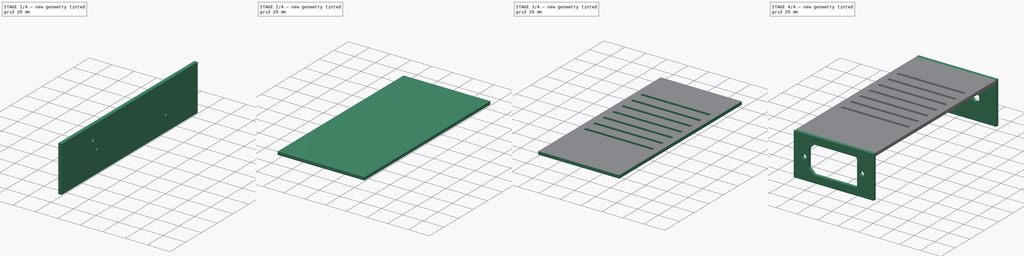
[diagram: build sequence overview — one tinted view per stage of 4, left to right]
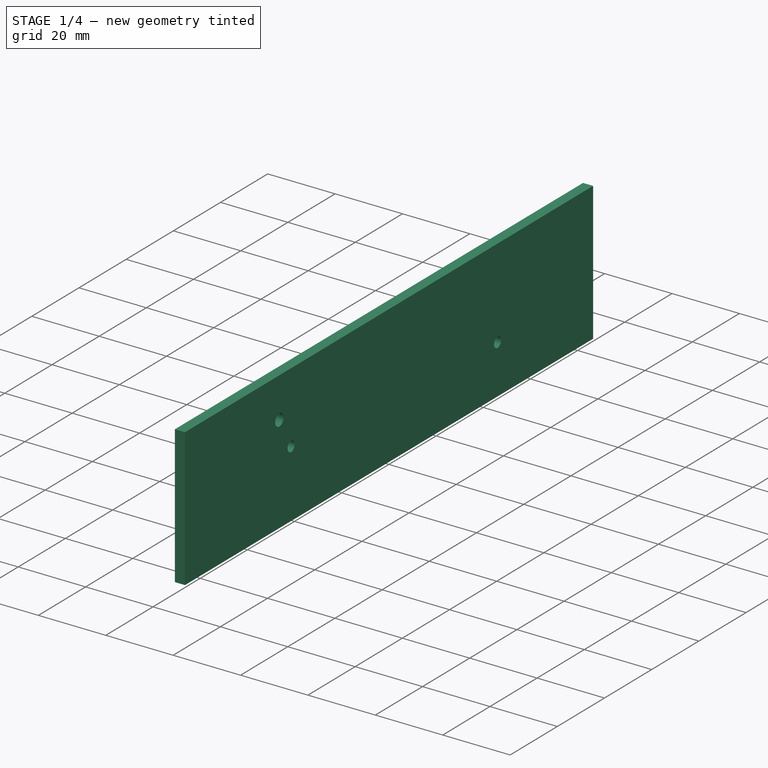
[diagram: stage 1 of 4 — iso view after this stage's code; geometry added in this stage tinted green]
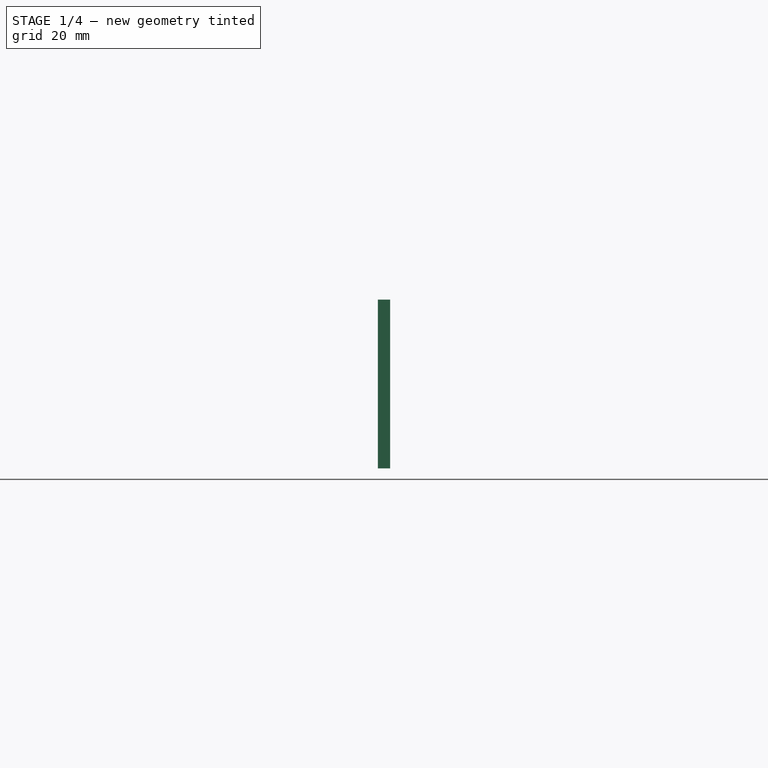
[diagram: stage 1 of 4 — front view after this stage's code; geometry added in this stage tinted green]
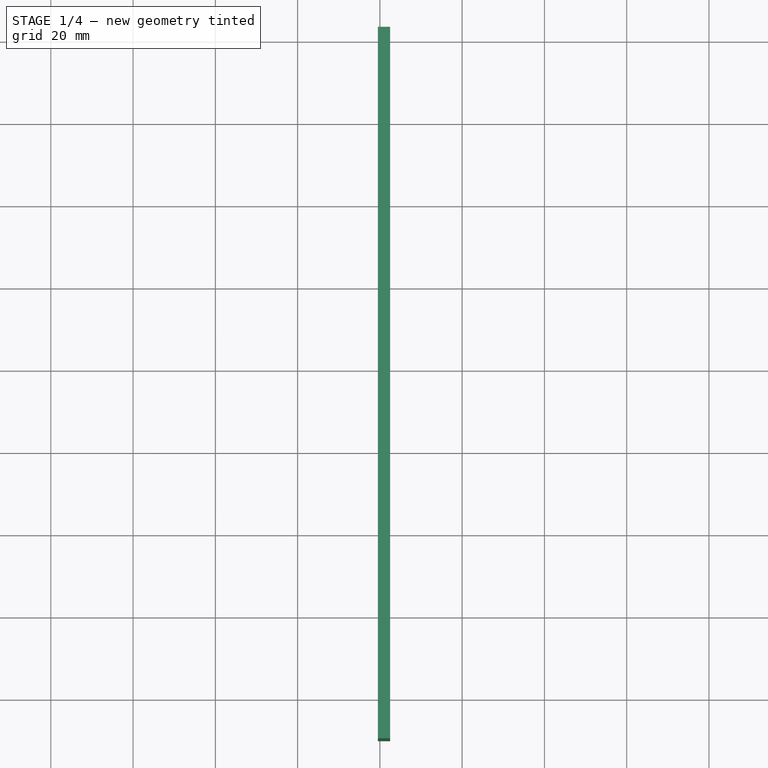
[diagram: stage 1 of 4 — top view after this stage's code; geometry added in this stage tinted green]
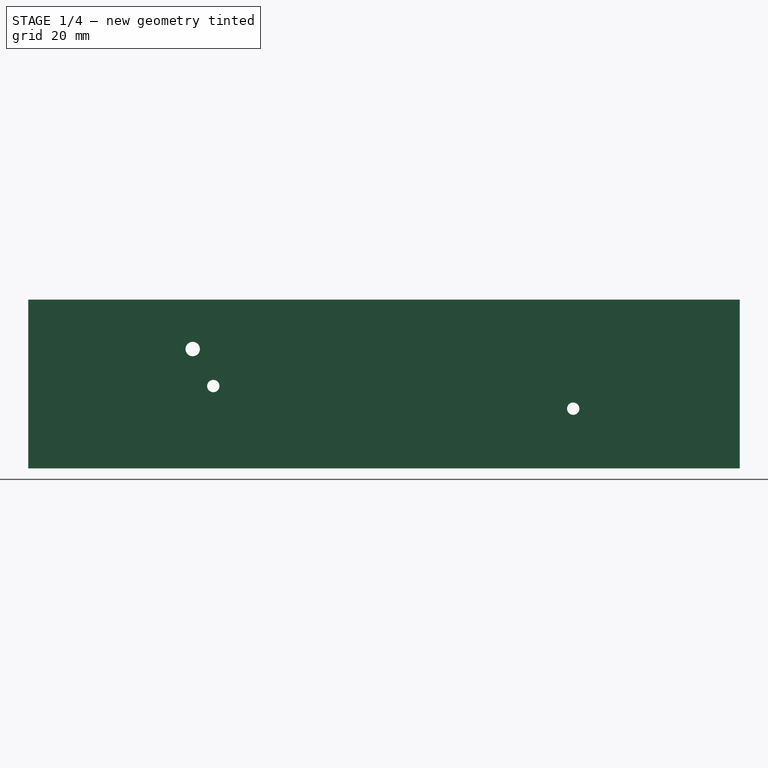
[diagram: stage 1 of 4 — right view after this stage's code; geometry added in this stage tinted green]
FCSTD DOCUMENT  (FreeCAD 0.19R14555 (Git shallow))
Label: case_simple_cut
License: All rights reserved
LicenseURL: http://en.wikipedia.org/wiki/All_rights_reserved
objects: Part::Feature×18, PartDesign::SubShapeBinder×12, Sketcher::SketchObject×9, PartDesign::Body×9, PartDesign::Pad×7, PartDesign::Plane×5, App::Part×4, PartDesign::FeatureBase×2, PartDesign::Pocket×2, Spreadsheet::Sheet×1, App::DocumentObjectGroup×1, Part::FeaturePython×1
note: 74 computed .brp shape members not serialized (recipe doc carries the construction recipe); baked Part::Feature solids carry a one-line shape summary decoded from their .brp

FEATURE [Part::Feature] assembly_Compound  label="psu"
  shape: bbox 77.5 x 110 x 36 mm, 793 faces, 0 solids (baked)
FEATURE [Part::Feature] __5mm_2_1mm_DC_JACK  label="dc_jack_mount"
  shape: bbox 10.8 x 21.74 x 10.8 mm, 87 faces, 0 solids (baked)
FEATURE [Part::Feature] __5mm_2_1mm_DC_JACK001  label="dc_jack_nut"
  Placement = pos=(0,3,0) rot=(0,0,1;0rad)
  shape: bbox 22.33 x 2.129 x 11.16 mm, 14 faces, 0 solids (baked)
  expr: .Placement.Base.y = <<measurements>>.thickness
FEATURE [Part::Feature] AC_Power_Socket_3_pin_250V_10A_AC_17002  label="power_socket"
  Placement = pos=(0,-90,20.5) rot=(1,0,0;1.5708rad)
  shape: bbox 66.3 x 35.64 x 32.3 mm, 981 faces, 17 solids (baked)
FEATURE [Spreadsheet::Sheet] Spreadsheet  label="measurements"
  cells = A1=thickness; B1(thickness)=3
FEATURE [PartDesign::SubShapeBinder] Binder  label="psu_binder"
  BindMode = 0
  ClaimChildren = false
  Context = -> Part [Body.Binder.]
  Fuse = false
  MakeFace = true
  PartialLoad = false
  Relative = true
  Support = -> [Part001[assembly_Compound.Face48,assembly_Compound.Edge254,assembly_Compound.Edge293]]
  _Version = 2
FEATURE [PartDesign::SubShapeBinder] Binder003
  BindMode = 0
  ClaimChildren = false
  Context = -> Part [Body001.Binder003.]
  Fuse = false
  MakeFace = true
  PartialLoad = false
  Relative = true
  Support = -> [Body[Pad.Face2,Pad.Edge3],Part001[assembly_Compound.Face52,assembly_Compound.Face55,assembly_Compound.Edge293]]
  _Version = 2
FEATURE [PartDesign::Plane] DatumPlane
  Length = 194.371
  MapMode = 7
  Placement = pos=(42.5,-90,0) rot=(0.57735,0.57735,0.57735;2.0944rad)
  ResizeMode = 0
  Support = -> [Binder003]
  Width = 87.371
FEATURE [Sketcher::SketchObject] Sketch001
  ExternalGeometry = -> [Binder003]
  FullyConstrained = true
  MapMode = 5
  Placement = pos=(42.5,-90,0) rot=(0.57735,0.57735,0.57735;2.0944rad)
  Support = -> [DatumPlane]
  expr: Constraints[12] = <<measurements>>.thickness + 2
  sketch-geometry (7):
    g0: LineSegment StartX=0 StartY=41 StartZ=0 EndX=173 EndY=41 EndZ=0
    g1: LineSegment StartX=173 StartY=41 StartZ=0 EndX=173 EndY=0 EndZ=0
    g2: LineSegment StartX=173 StartY=0 StartZ=0 EndX=0 EndY=0 EndZ=0
    g3: LineSegment StartX=0 StartY=0 StartZ=0 EndX=0 EndY=41 EndZ=0
    g4: Circle CenterX=40 CenterY=29 CenterZ=0 NormalX=0 NormalY=0 NormalZ=1 AngleXU=0 Radius=1.75
    g5: Circle CenterX=45 CenterY=20 CenterZ=0 NormalX=0 NormalY=0 NormalZ=1 AngleXU=0 Radius=1.5
    g6: Circle CenterX=132.5 CenterY=14.5 CenterZ=0 NormalX=0 NormalY=0 NormalZ=1 AngleXU=0 Radius=1.5
  constraints (17):
    c: Coincident(g0,g1)
    c: Coincident(g1,g2)
    c: Coincident(g3,g0)
    c: Horizontal(g0)
    c: Vertical(g1)
    c: Vertical(g3)
    c: Coincident(g6,g-8)
    c: Coincident(g-6,g5)
    c: Coincident(g-5,g4)
    c: Equal(g4,g-5)
    c: Equal(g-6,g5)
    c: Equal(g-8,g6)
    c: DistanceY(g-4,g0) = 5
    c: Coincident(g2,g3)
    c: Horizontal(g2)
    c: Coincident(g2,g-1)
    c: Vertical(g1,g-3)
FEATURE [PartDesign::Pad] Pad001
  Direction = (1,1,1)
  Length = 3
  Length2 = 100
  Placement = pos=(42.5,-90,0) rot=(0.57735,0.57735,0.57735;2.0944rad)
  Profile = -> Sketch001
  Refine = true
  Reversed = true
  Type = 0
  expr: Length = <<measurements>>.thickness
FEATURE [PartDesign::SubShapeBinder] Binder010  label="dc_jack_binder"
  BindMode = 0
  ClaimChildren = false
  Context = -> Part [Body.Binder010.]
  Fuse = false
  MakeFace = true
  PartialLoad = false
  Relative = true
  Support = -> [Part001[Part002.__5mm_2_1mm_DC_JACK.Face45,Part003.Body008.Clone001.Face45,Part002.__5mm_2_1mm_DC_JACK001.Face5,Part002.__5mm_2_1mm_DC_JACK.Face44,Part003.Body008.Clone001.Face44,Part003.Body007.Clone.Face5,Part002.__5mm_2_1mm_DC_JACK.Face34,Part003.Body008.Clone001.Face34]]
  _Version = 2
FEATURE [Sketcher::SketchObject] Sketch
  ExternalGeometry = -> [Binder,Binder006,Binder010]
  FullyConstrained = true
  MapMode = 5
  Placement = pos=(0,0,0) rot=(1,0,0;3.14159rad)
  Support = -> [Binder]
  expr: Constraints[23] = <<measurements>>.thickness
  expr: Constraints[21] = <<measurements>>.thickness
  expr: Constraints[20] = <<measurements>>.thickness
  sketch-geometry (10):
    g0: LineSegment StartX=-41 StartY=90 StartZ=0 EndX=42.5 EndY=90 EndZ=0
    g1: LineSegment StartX=42.5 StartY=90 StartZ=0 EndX=42.5 EndY=-83 EndZ=0
    g2: LineSegment StartX=42.5 StartY=-83 StartZ=0 EndX=-41 EndY=-83 EndZ=0
    g3: LineSegment StartX=-41 StartY=-83 StartZ=0 EndX=-41 EndY=90 EndZ=0
    g4: Circle CenterX=-33 CenterY=50 CenterZ=0 NormalX=0 NormalY=0 NormalZ=1 AngleXU=0 Radius=1.5
    g5: Circle CenterX=-13 CenterY=23 CenterZ=0 NormalX=0 NormalY=0 NormalZ=1 AngleXU=0 Radius=1.5
    g6: Circle CenterX=35 CenterY=51 CenterZ=0 NormalX=0 NormalY=0 NormalZ=1 AngleXU=0 Radius=1.75
    g7: Circle CenterX=15 CenterY=-13 CenterZ=0 NormalX=0 NormalY=0 NormalZ=1 AngleXU=0 Radius=1.5
    g8: Circle CenterX=-13 CenterY=-13 CenterZ=0 NormalX=0 NormalY=0 NormalZ=1 AngleXU=0 Radius=1.5
    g9: Circle CenterX=-30.5 CenterY=-43 CenterZ=0 NormalX=0 NormalY=0 NormalZ=1 AngleXU=0 Radius=1.5
  constraints (24):
    c: Coincident(g0,g1)
    c: Coincident(g1,g2)
    c: Coincident(g2,g3)
    c: Coincident(g3,g0)
    c: Horizontal(g0)
    c: Horizontal(g2)
    c: Vertical(g1)
    c: Vertical(g3)
    c: Coincident(g4,g-4)
    c: Equal(g4,g-4)
    c: Coincident(g5,g-3)
    c: Coincident(g6,g-5)
    c: Coincident(g7,g-6)
    c: Coincident(g8,g-7)
    c: Coincident(g9,g-8)
    c: Equal(g-5,g6)
    c: Equal(g-3,g5)
    c: Equal(g-7,g8)
    c: Equal(g7,g-6)
    c: Equal(g9,g-8)
    c: DistanceX(g-13,g1) = 3
    c: DistanceX(g2,g-11) = 3
    c: Horizontal(g0,g-14)
    c: DistanceY(g1,g-16) = 3
FEATURE [PartDesign::Pad] Pad
  Direction = (1,1,1)
  Length = 3
  Length2 = 100
  Profile = -> Sketch
  Refine = true
  Type = 0
  expr: Length = <<measurements>>.thickness
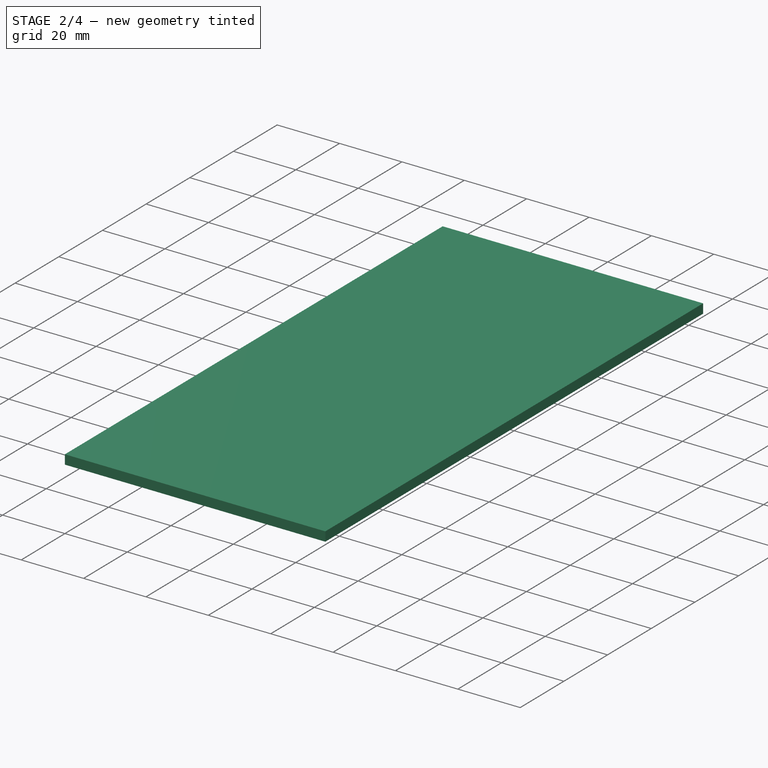
[diagram: stage 2 of 4 — iso view after this stage's code; geometry added in this stage tinted green]
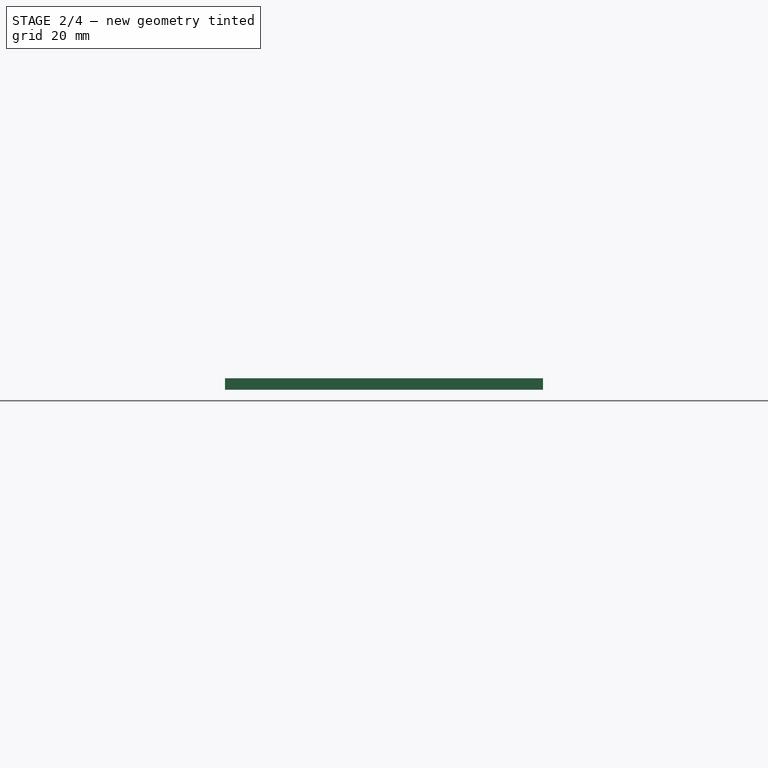
[diagram: stage 2 of 4 — front view after this stage's code; geometry added in this stage tinted green]
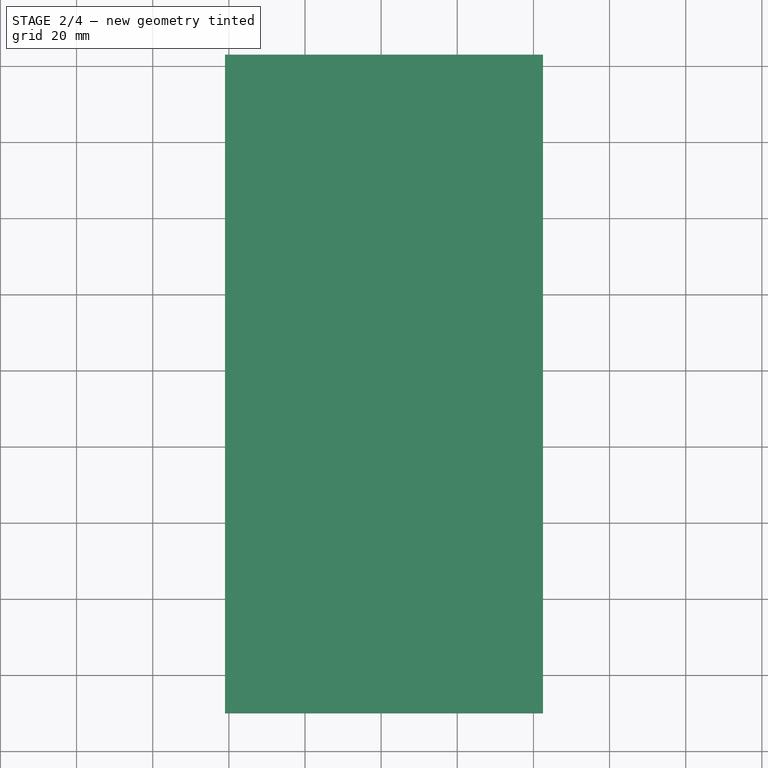
[diagram: stage 2 of 4 — top view after this stage's code; geometry added in this stage tinted green]
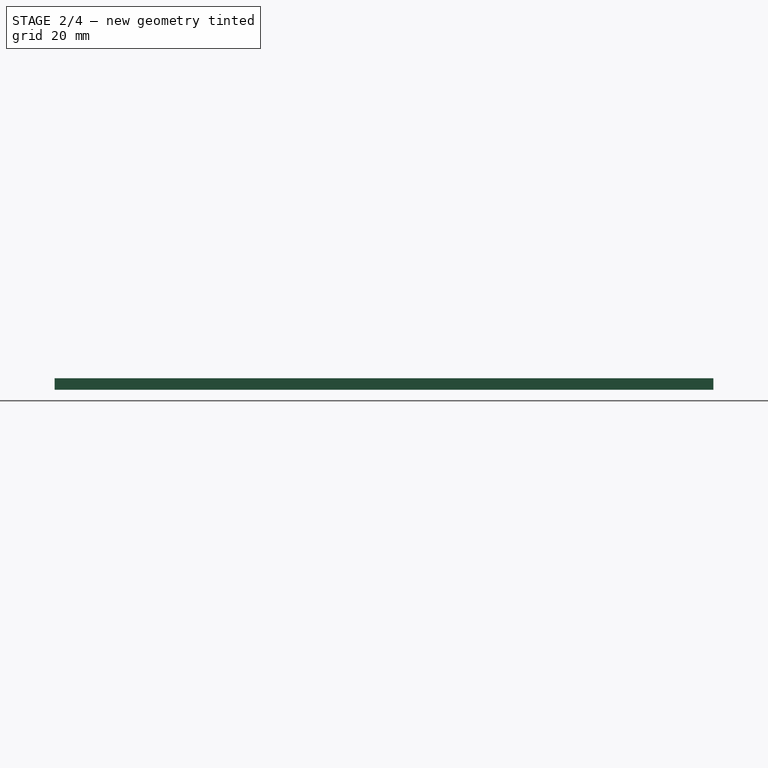
[diagram: stage 2 of 4 — right view after this stage's code; geometry added in this stage tinted green]
FEATURE [PartDesign::Body] Body001  label="right"
  Group = -> [Binder003,DatumPlane,Sketch001,Pad001]
  Origin = -> Origin003
  Tip = -> Pad001
FEATURE [PartDesign::SubShapeBinder] Binder004
  BindMode = 0
  ClaimChildren = false
  Context = -> Part [Body002.Binder004.]
  Fuse = false
  MakeFace = true
  PartialLoad = false
  Relative = true
  Support = -> [Body[Pad.Face4,Pad.Edge4],Body001[Pad001.Edge3]]
  _Version = 2
FEATURE [PartDesign::Plane] DatumPlane001
  Length = 194.371
  MapMode = 7
  Placement = pos=(-41,-90,-3) rot=(0.57735,-0.57735,-0.57735;2.0944rad)
  ResizeMode = 0
  Support = -> [Binder004]
  Width = 87.371
FEATURE [Sketcher::SketchObject] Sketch002
  ExternalGeometry = -> [Binder004]
  FullyConstrained = true
  MapMode = 5
  Placement = pos=(-41,-90,-3) rot=(0.57735,-0.57735,-0.57735;2.0944rad)
  Support = -> [DatumPlane001]
  expr: Constraints[9] = <<measurements>>.thickness
  sketch-geometry (4):
    g0: LineSegment StartX=-173 StartY=44 StartZ=0 EndX=0 EndY=44 EndZ=0
    g1: LineSegment StartX=0 StartY=44 StartZ=0 EndX=0 EndY=3 EndZ=0
    g2: LineSegment StartX=0 StartY=3 StartZ=0 EndX=-173 EndY=3 EndZ=0
    g3: LineSegment StartX=-173 StartY=3 StartZ=0 EndX=-173 EndY=44 EndZ=0
  constraints (11):
    c: Coincident(g0,g1)
    c: Coincident(g1,g2)
    c: Coincident(g2,g3)
    c: Coincident(g3,g0)
    c: Horizontal(g0)
    c: Horizontal(g2)
    c: Vertical(g1)
    c: Vertical(g3)
    c: Vertical(g2,g-3)
    c: DistanceY(g-1,g1) = 3
    c: Coincident(g0,g-3)
FEATURE [PartDesign::Pad] Pad002
  Direction = (1,1,1)
  Length = 3
  Length2 = 100
  Placement = pos=(-41,-90,-3) rot=(0.57735,-0.57735,-0.57735;2.0944rad)
  Profile = -> Sketch002
  Refine = true
  Reversed = true
  Type = 0
  expr: Length = <<measurements>>.thickness
FEATURE [PartDesign::Body] Body006  label="back"
  Group = -> [Binder008,DatumPlane004,Sketch005,Pad005]
  Origin = -> Origin008
  Tip = -> Pad005
FEATURE [PartDesign::SubShapeBinder] Binder005  label="sidewall_tops"
  BindMode = 0
  ClaimChildren = false
  Context = -> Part [Body003.Binder005.]
  Fuse = false
  MakeFace = true
  PartialLoad = false
  Relative = true
  Support = -> [Body001[Pad001.Face1],Body002[Pad002.Face1]]
  _Version = 2
FEATURE [PartDesign::Plane] DatumPlane002
  Length = 107.538
  MapMode = 5
  Placement = pos=(4.5e-15,0,41) rot=(0,0,1;0rad)
  ResizeMode = 0
  Support = -> [Binder005]
  Width = 197.038
FEATURE [PartDesign::SubShapeBinder] Binder009  label="bottom_binder"
  BindMode = 0
  ClaimChildren = false
  Context = -> Part [Body003.Binder009.]
  Fuse = false
  MakeFace = true
  PartialLoad = false
  Relative = true
  Support = -> [Body]
  _Version = 2
FEATURE [Sketcher::SketchObject] Sketch003
  ExternalGeometry = -> [Binder005,Binder009]
  FullyConstrained = true
  MapMode = 5
  Placement = pos=(4.5e-15,0,41) rot=(0,0,1;0rad)
  Support = -> [DatumPlane002]
  sketch-geometry (4):
    g0: LineSegment StartX=-41 StartY=83 StartZ=0 EndX=42.5 EndY=83 EndZ=0
    g1: LineSegment StartX=42.5 StartY=83 StartZ=0 EndX=42.5 EndY=-90 EndZ=0
    g2: LineSegment StartX=42.5 StartY=-90 StartZ=0 EndX=-41 EndY=-90 EndZ=0
    g3: LineSegment StartX=-41 StartY=-90 StartZ=0 EndX=-41 EndY=83 EndZ=0
  constraints (10):
    c: Coincident(g0,g1)
    c: Coincident(g1,g2)
    c: Coincident(g2,g3)
    c: Coincident(g3,g0)
    c: Horizontal(g0)
    c: Horizontal(g2)
    c: Vertical(g1)
    c: Vertical(g3)
    c: Coincident(g0,g-5)
    c: Coincident(g2,g-6)
FEATURE [PartDesign::Pad] Pad003
  Direction = (1,1,1)
  Length = 3
  Length2 = 100
  Placement = pos=(5e-15,0,41) rot=(0,0,1;0rad)
  Profile = -> Sketch003
  Refine = true
  Type = 0
  expr: Length = <<measurements>>.thickness
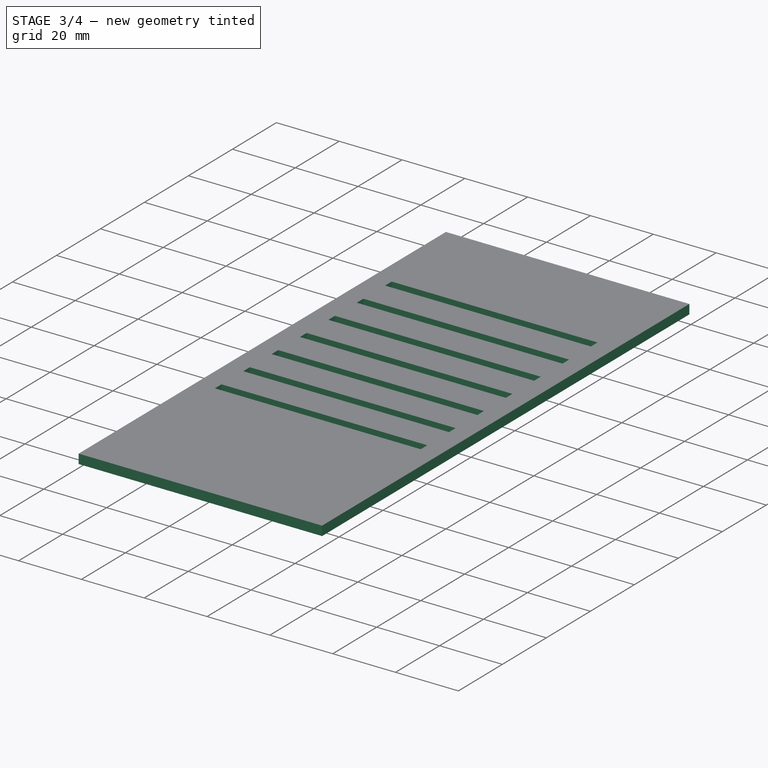
[diagram: stage 3 of 4 — iso view after this stage's code; geometry added in this stage tinted green]
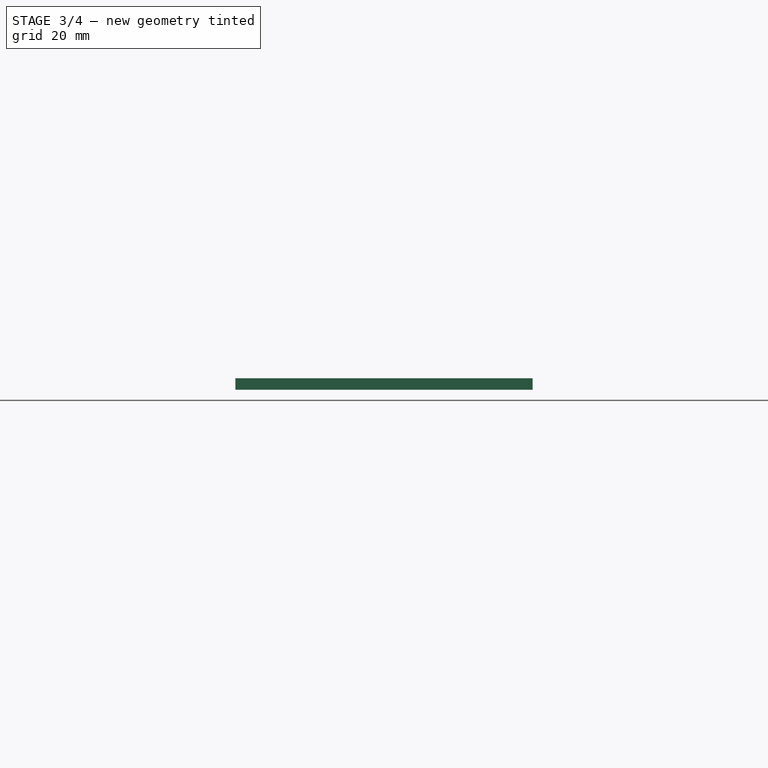
[diagram: stage 3 of 4 — front view after this stage's code; geometry added in this stage tinted green]
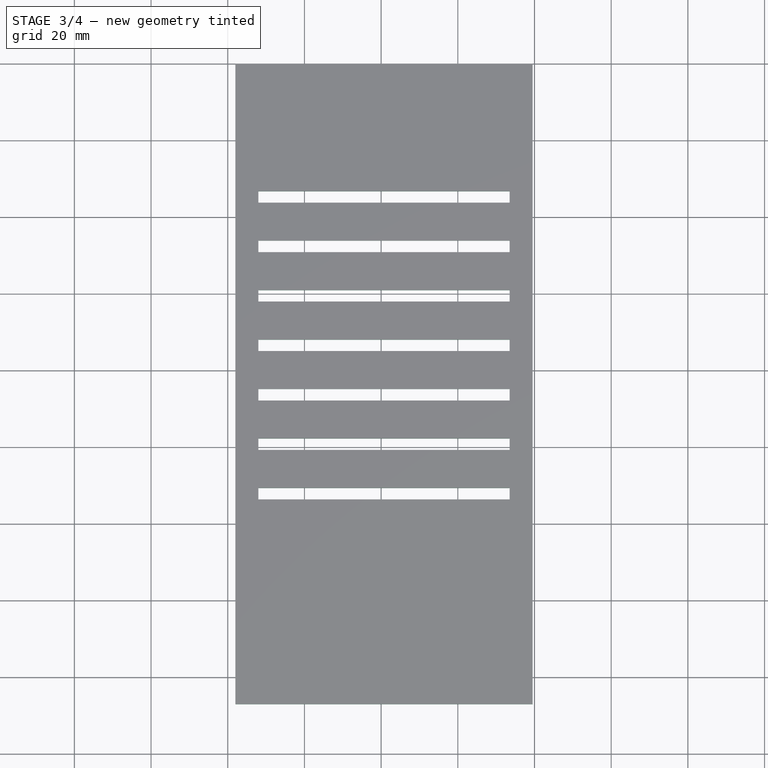
[diagram: stage 3 of 4 — top view after this stage's code; geometry added in this stage tinted green]
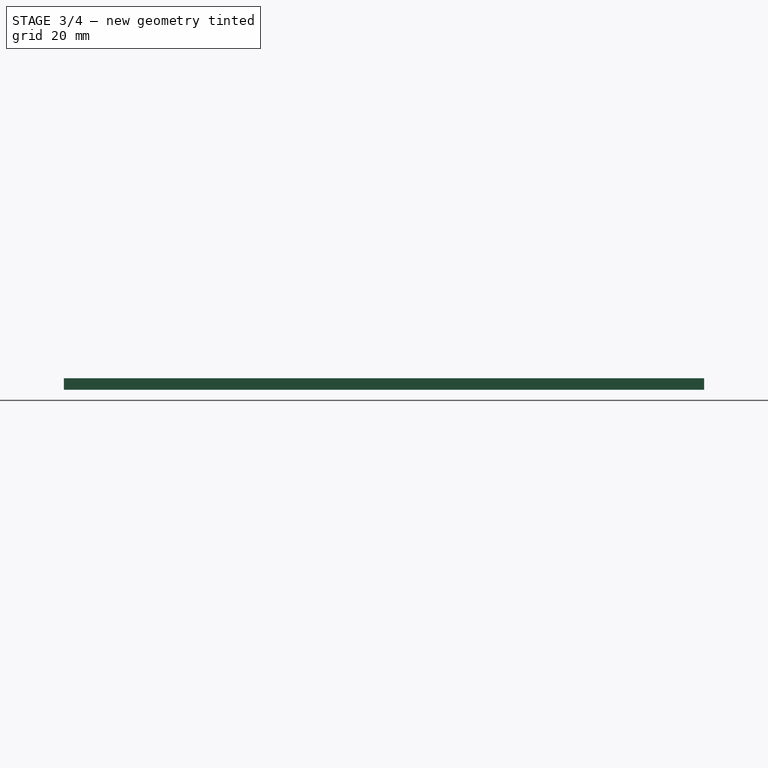
[diagram: stage 3 of 4 — right view after this stage's code; geometry added in this stage tinted green]
FEATURE [PartDesign::Body] Body  label="bottom"
  Group = -> [Binder,Binder006,Binder010,Sketch,Pad]
  Origin = -> Origin
  Tip = -> Pad
FEATURE [PartDesign::SubShapeBinder] Binder012
  BindMode = 0
  ClaimChildren = false
  Context = -> Part [Body004.Binder012.]
  Fuse = false
  MakeFace = true
  PartialLoad = false
  Relative = true
  Support = -> [Body003[Pad003.Sketch003.]]
  _Version = 2
FEATURE [Sketcher::SketchObject] Sketch007
  ExternalGeometry = -> [Binder012]
  FullyConstrained = true
  MapMode = 5
  Placement = pos=(7e-15,0,41) rot=(0,0,1;0rad)
  Support = -> [Binder012]
  expr: Constraints[11] = <<measurements>>.thickness
  expr: Constraints[10] = <<measurements>>.thickness
  expr: Constraints[9] = <<measurements>>.thickness
  expr: Constraints[8] = <<measurements>>.thickness
  sketch-geometry (4):
    g0: LineSegment StartX=39.5 StartY=80 StartZ=0 EndX=-38 EndY=80 EndZ=0
    g1: LineSegment StartX=-38 StartY=80 StartZ=0 EndX=-38 EndY=-87 EndZ=0
    g2: LineSegment StartX=-38 StartY=-87 StartZ=0 EndX=39.5 EndY=-87 EndZ=0
    g3: LineSegment StartX=39.5 StartY=-87 StartZ=0 EndX=39.5 EndY=80 EndZ=0
  constraints (12):
    c: Coincident(g0,g1)
    c: Coincident(g1,g2)
    c: Coincident(g2,g3)
    c: Coincident(g3,g0)
    c: Horizontal(g0)
    c: Horizontal(g2)
    c: Vertical(g1)
    c: Vertical(g3)
    c: DistanceY(g0,g-3) = 3
    c: DistanceX(g0,g-3) = 3
    c: DistanceX(g-4,g1) = 3
    c: DistanceY(g-4,g1) = 3
FEATURE [PartDesign::Pad] Pad006
  Direction = (1,1,1)
  Length = 3
  Length2 = 100
  Profile = -> Sketch007
  Refine = true
  Reversed = true
  Type = 0
  expr: Length = <<measurements>>.thickness
FEATURE [PartDesign::SubShapeBinder] Binder013  label="psu_binder001"
  BindMode = 0
  ClaimChildren = false
  Context = -> Part [Body003.Binder013.]
  Fuse = false
  MakeFace = true
  PartialLoad = false
  Relative = true
  Support = -> [Part001[assembly_Compound.Face117,assembly_Compound.Face139,assembly_Compound.Edge694,assembly_Compound.Face128,assembly_Compound.Face125]]
  _Version = 2
FEATURE [Sketcher::SketchObject] Sketch008
  ExternalGeometry = -> [Binder005,Binder013]
  FullyConstrained = true
  MapMode = 5
  Placement = pos=(4.5e-15,0,41) rot=(0,0,1;0rad)
  Support = -> [DatumPlane002]
  expr: Constraints[7] = <<measurements>>.thickness * 2
  expr: Constraints[8] = <<measurements>>.thickness
  expr: Constraints[92] = <<measurements>>.thickness
  expr: Constraints[93] = <<measurements>>.thickness
  sketch-geometry (36):
    g0: LineSegment StartX=-32 StartY=46.7837 StartZ=0 EndX=33.5 EndY=46.7837 EndZ=0
    g1: LineSegment StartX=33.5 StartY=46.7837 StartZ=0 EndX=33.5 EndY=43.7837 EndZ=0
    g2: LineSegment StartX=33.5 StartY=43.7837 StartZ=0 EndX=-32 EndY=43.7837 EndZ=0
    g3: LineSegment StartX=-32 StartY=43.7837 StartZ=0 EndX=-32 EndY=46.7837 EndZ=0
    g4: LineSegment StartX=-32 StartY=33.8837 StartZ=0 EndX=33.5 EndY=33.8837 EndZ=0
    g5: LineSegment StartX=33.5 StartY=33.8837 StartZ=0 EndX=33.5 EndY=30.8837 EndZ=0
    g6: LineSegment StartX=33.5 StartY=30.8837 StartZ=0 EndX=-32 EndY=30.8837 EndZ=0
    g7: LineSegment StartX=-32 StartY=30.8837 StartZ=0 EndX=-32 EndY=33.8837 EndZ=0
    g8: LineSegment StartX=-32 StartY=20.9837 StartZ=0 EndX=33.5 EndY=20.9837 EndZ=0
    g9: LineSegment StartX=33.5 StartY=20.9837 StartZ=0 EndX=33.5 EndY=17.9837 EndZ=0
    g10: LineSegment StartX=33.5 StartY=17.9837 StartZ=0 EndX=-32 EndY=17.9837 EndZ=0
    g11: LineSegment StartX=-32 StartY=17.9837 StartZ=0 EndX=-32 EndY=20.9837 EndZ=0
    g12: LineSegment StartX=-32 StartY=8.08371 StartZ=0 EndX=33.5 EndY=8.08371 EndZ=0
    g13: LineSegment StartX=33.5 StartY=8.08371 StartZ=0 EndX=33.5 EndY=5.08371 EndZ=0
    g14: LineSegment StartX=33.5 StartY=5.08371 StartZ=0 EndX=-32 EndY=5.08371 EndZ=0
    g15: LineSegment StartX=-32 StartY=5.08371 StartZ=0 EndX=-32 EndY=8.08371 EndZ=0
    g16: LineSegment StartX=-32 StartY=-4.81629 StartZ=0 EndX=33.5 EndY=-4.81629 EndZ=0
    g17: LineSegment StartX=33.5 StartY=-4.81629 StartZ=0 EndX=33.5 EndY=-7.81629 EndZ=0
    g18: LineSegment StartX=33.5 StartY=-7.81629 StartZ=0 EndX=-32 EndY=-7.81629 EndZ=0
    g19: LineSegment StartX=-32 StartY=-7.81629 StartZ=0 EndX=-32 EndY=-4.81629 EndZ=0
    g20: LineSegment StartX=-32 StartY=-17.7163 StartZ=0 EndX=33.5 EndY=-17.7163 EndZ=0
    g21: LineSegment StartX=33.5 StartY=-17.7163 StartZ=0 EndX=33.5 EndY=-20.7163 EndZ=0
    g22: LineSegment StartX=33.5 StartY=-20.7163 StartZ=0 EndX=-32 EndY=-20.7163 EndZ=0
    g23: LineSegment StartX=-32 StartY=-20.7163 StartZ=0 EndX=-32 EndY=-17.7163 EndZ=0
    g24: LineSegment StartX=-32 StartY=-30.6163 StartZ=0 EndX=33.5 EndY=-30.6163 EndZ=0
    g25: LineSegment StartX=33.5 StartY=-30.6163 StartZ=0 EndX=33.5 EndY=-33.6163 EndZ=0
    g26: LineSegment StartX=33.5 StartY=-33.6163 StartZ=0 EndX=-32 EndY=-33.6163 EndZ=0
    g27: LineSegment StartX=-32 StartY=-33.6163 StartZ=0 EndX=-32 EndY=-30.6163 EndZ=0
    g28: LineSegment StartX=-32 StartY=43.7837 StartZ=0 EndX=-32 EndY=33.8837 EndZ=0
    g29: LineSegment StartX=-32 StartY=30.8837 StartZ=0 EndX=-32 EndY=20.9837 EndZ=0
    g30: LineSegment StartX=-32 StartY=17.9837 StartZ=0 EndX=-32 EndY=8.08371 EndZ=0
    g31: LineSegment StartX=-32 StartY=5.08371 StartZ=0 EndX=-32 EndY=-4.81629 EndZ=0
    g32: LineSegment StartX=-32 StartY=-7.81629 StartZ=0 EndX=-32 EndY=-17.7163 EndZ=0
    g33: LineSegment StartX=-32 StartY=-20.7163 StartZ=0 EndX=-32 EndY=-30.6163 EndZ=0
    g34: LineSegment StartX=-32 StartY=43.7837 StartZ=0 EndX=-38 EndY=43.7837 EndZ=0
    g35: LineSegment StartX=33.5 StartY=43.7837 StartZ=0 EndX=39.5 EndY=43.7837 EndZ=0
  constraints (102):
    c: Coincident(g0,g1)
    c: Coincident(g1,g2)
    c: Coincident(g2,g3)
    c: Coincident(g3,g0)
    c: Horizontal(g2)
    c: Vertical(g1)
    c: Vertical(g3)
    c: DistanceX(g0,g-4) = 6
    c: DistanceY(g1,g0) = 3
    c: Coincident(g4,g5)
    c: Coincident(g5,g6)
    c: Coincident(g6,g7)
    c: Coincident(g7,g4)
    c: Horizontal(g4)
    c: Horizontal(g6)
    c: Vertical(g5)
    c: Vertical(g7)
    c: Coincident(g8,g9)
    c: Coincident(g9,g10)
    c: Coincident(g10,g11)
    c: Coincident(g11,g8)
    c: Horizontal(g8)
    c: Horizontal(g10)
    c: Vertical(g9)
    c: Vertical(g11)
    c: Coincident(g12,g13)
    c: Coincident(g13,g14)
    c: Coincident(g14,g15)
    c: Coincident(g15,g12)
    c: Horizontal(g12)
    c: Horizontal(g14)
    c: Vertical(g13)
    c: Vertical(g15)
    c: Coincident(g16,g17)
    c: Coincident(g17,g18)
    c: Coincident(g18,g19)
    c: Coincident(g19,g16)
    c: Horizontal(g16)
    c: Horizontal(g18)
    c: Vertical(g17)
    c: Vertical(g19)
    c: Coincident(g20,g21)
    c: Coincident(g21,g22)
    c: Coincident(g22,g23)
    c: Coincident(g23,g20)
    c: Horizontal(g20)
    c: Horizontal(g22)
    c: Vertical(g21)
    c: Vertical(g23)
    c: Coincident(g24,g25)
    c: Coincident(g25,g26)
    c: Coincident(g26,g27)
    c: Coincident(g27,g24)
    c: Horizontal(g24)
    c: Horizontal(g26)
    c: Vertical(g25)
    c: Vertical(g27)
    c: Equal(g1,g5)
    c: Equal(g5,g9)
    c: Equal(g9,g13)
    c: Equal(g13,g17)
    c: Equal(g17,g21)
    c: Equal(g21,g25)
    c: Vertical(g24,g20)
    c: Vertical(g20,g16)
    c: Vertical(g16,g12)
    c: Vertical(g12,g8)
    c: Vertical(g8,g4)
    c: Vertical(g4,g0)
    c: Vertical(g24,g20)
    c: Vertical(g20,g16)
    c: Vertical(g16,g12)
    c: Vertical(g12,g8)
    c: Vertical(g8,g4)
    c: Vertical(g4,g0)
    c: Coincident(g28,g2)
    c: Coincident(g28,g4)
    c: Coincident(g29,g6)
    c: Coincident(g29,g8)
    c: Coincident(g30,g10)
    c: Coincident(g30,g12)
    c: Coincident(g31,g14)
    c: Coincident(g31,g16)
    c: Coincident(g32,g18)
    c: Coincident(g32,g20)
    c: Coincident(g33,g22)
    c: Coincident(g33,g24)
    c: Equal(g33,g32)
    c: Equal(g32,g31)
    c: Equal(g31,g30)
    c: Equal(g30,g29)
    c: Equal(g29,g28)
    c: DistanceY(g0,g-5) = 3
    c: DistanceY(g-6,g25) = 3
    c: Horizontal(g0)
    c: Coincident(g34,g2)
    c: PointOnObject(g34,g-3)
    c: Horizontal(g34)
    c: Coincident(g35,g1)
    c: PointOnObject(g35,g-4)
    c: Horizontal(g35)
    c: Equal(g35,g34)
FEATURE [PartDesign::Pocket] Pocket
  BaseFeature = -> Pad003
  Length = 5
  Length2 = 100
  Placement = pos=(5e-15,0,41) rot=(0,0,1;0rad)
  Profile = -> Sketch008
  Refine = true
  Reversed = true
  Type = 1
FEATURE [PartDesign::Body] Body003  label="top"
  Group = -> [Binder005,Binder009,DatumPlane002,Sketch003,Pad003,Binder013,Sketch008,Pocket]
  Origin = -> Origin005
  Tip = -> Pocket
FEATURE [PartDesign::SubShapeBinder] Binder014  label="pocket_binder"
  BindMode = 0
  ClaimChildren = false
  Context = -> Part [Body004.Binder014.]
  Fuse = false
  MakeFace = true
  PartialLoad = false
  Relative = true
  Support = -> [Body003[Pocket.Sketch008.]]
  _Version = 2
FEATURE [Sketcher::SketchObject] Sketch009
  ExternalGeometry = -> [Binder014]
  FullyConstrained = true
  MapMode = 5
  Placement = pos=(7e-15,0,41) rot=(0,0,1;0rad)
  Support = -> [Binder012]
  sketch-geometry (28):
    g0: LineSegment StartX=-32 StartY=-30.6163 StartZ=0 EndX=33.5 EndY=-30.6163 EndZ=0
    g1: LineSegment StartX=33.5 StartY=-30.6163 StartZ=0 EndX=33.5 EndY=-33.6163 EndZ=0
    g2: LineSegment StartX=33.5 StartY=-33.6163 StartZ=0 EndX=-32 EndY=-33.6163 EndZ=0
    g3: LineSegment StartX=-32 StartY=-33.6163 StartZ=0 EndX=-32 EndY=-30.6163 EndZ=0
    g4: LineSegment StartX=33.5 StartY=-20.7163 StartZ=0 EndX=-32 EndY=-20.7163 EndZ=0
    g5: LineSegment StartX=-32 StartY=-20.7163 StartZ=0 EndX=-32 EndY=-17.7163 EndZ=0
    g6: LineSegment StartX=-32 StartY=-17.7163 StartZ=0 EndX=33.5 EndY=-17.7163 EndZ=0
    g7: LineSegment StartX=33.5 StartY=-17.7163 StartZ=0 EndX=33.5 EndY=-20.7163 EndZ=0
    g8: LineSegment StartX=-32 StartY=-4.81629 StartZ=0 EndX=33.5 EndY=-4.81629 EndZ=0
    g9: LineSegment StartX=33.5 StartY=-4.81629 StartZ=0 EndX=33.5 EndY=-7.81629 EndZ=0
    g10: LineSegment StartX=33.5 StartY=-7.81629 StartZ=0 EndX=-32 EndY=-7.81629 EndZ=0
    g11: LineSegment StartX=-32 StartY=-7.81629 StartZ=0 EndX=-32 EndY=-4.81629 EndZ=0
    g12: LineSegment StartX=33.5 StartY=5.08371 StartZ=0 EndX=-32 EndY=5.08371 EndZ=0
    g13: LineSegment StartX=-32 StartY=5.08371 StartZ=0 EndX=-32 EndY=8.08371 EndZ=0
    g14: LineSegment StartX=-32 StartY=8.08371 StartZ=0 EndX=33.5 EndY=8.08371 EndZ=0
    g15: LineSegment StartX=33.5 StartY=8.08371 StartZ=0 EndX=33.5 EndY=5.08371 EndZ=0
    g16: LineSegment StartX=-32 StartY=20.9837 StartZ=0 EndX=33.5 EndY=20.9837 EndZ=0
    g17: LineSegment StartX=33.5 StartY=20.9837 StartZ=0 EndX=33.5 EndY=17.9837 EndZ=0
    g18: LineSegment StartX=33.5 StartY=17.9837 StartZ=0 EndX=-32 EndY=17.9837 EndZ=0
    g19: LineSegment StartX=-32 StartY=17.9837 StartZ=0 EndX=-32 EndY=20.9837 EndZ=0
    g20: LineSegment StartX=-32 StartY=33.8837 StartZ=0 EndX=33.5 EndY=33.8837 EndZ=0
    g21: LineSegment StartX=33.5 StartY=33.8837 StartZ=0 EndX=33.5 EndY=30.8837 EndZ=0
    g22: LineSegment StartX=33.5 StartY=30.8837 StartZ=0 EndX=-32 EndY=30.8837 EndZ=0
    g23: LineSegment StartX=-32 StartY=30.8837 StartZ=0 EndX=-32 EndY=33.8837 EndZ=0
    g24: LineSegment StartX=-32 StartY=46.7837 StartZ=0 EndX=33.5 EndY=46.7837 EndZ=0
    g25: LineSegment StartX=33.5 StartY=46.7837 StartZ=0 EndX=33.5 EndY=43.7837 EndZ=0
    g26: LineSegment StartX=33.5 StartY=43.7837 StartZ=0 EndX=-32 EndY=43.7837 EndZ=0
    g27: LineSegment StartX=-32 StartY=43.7837 StartZ=0 EndX=-32 EndY=46.7837 EndZ=0
  constraints (70):
    c: Coincident(g0,g1)
    c: Coincident(g1,g2)
    c: Coincident(g2,g3)
    c: Coincident(g3,g0)
    c: Horizontal(g0)
    c: Horizontal(g2)
    c: Vertical(g1)
    c: Vertical(g3)
    c: Coincident(g0,g-15)
    c: Coincident(g1,g-16)
    c: Coincident(g4,g5)
    c: Coincident(g5,g6)
    c: Coincident(g6,g7)
    c: Coincident(g7,g4)
    c: Horizontal(g4)
    c: Horizontal(g6)
    c: Vertical(g5)
    c: Vertical(g7)
    c: Coincident(g4,g-13)
    c: Coincident(g5,g-14)
    c: Coincident(g8,g9)
    c: Coincident(g9,g10)
    c: Coincident(g10,g11)
    c: Coincident(g11,g8)
    c: Horizontal(g8)
    c: Horizontal(g10)
    c: Vertical(g9)
    c: Vertical(g11)
    c: Coincident(g8,g-11)
    c: Coincident(g9,g-12)
    c: Coincident(g12,g13)
    c: Coincident(g13,g14)
    c: Coincident(g14,g15)
    c: Coincident(g15,g12)
    c: Horizontal(g12)
    c: Horizontal(g14)
    c: Vertical(g13)
    c: Vertical(g15)
    c: Coincident(g12,g-9)
    c: Coincident(g13,g-10)
    c: Coincident(g16,g17)
    c: Coincident(g17,g18)
    c: Coincident(g18,g19)
    c: Coincident(g19,g16)
    c: Horizontal(g16)
    c: Horizontal(g18)
    c: Vertical(g17)
    c: Vertical(g19)
    c: Coincident(g16,g-7)
    c: Coincident(g17,g-8)
    c: Coincident(g20,g21)
    c: Coincident(g21,g22)
    c: Coincident(g22,g23)
    c: Coincident(g23,g20)
    c: Horizontal(g20)
    c: Horizontal(g22)
    c: Vertical(g21)
    c: Vertical(g23)
    c: Coincident(g20,g-6)
    c: Coincident(g21,g-5)
    c: Coincident(g24,g25)
    c: Coincident(g25,g26)
    c: Coincident(g26,g27)
    c: Coincident(g27,g24)
    c: Horizontal(g24)
    c: Horizontal(g26)
    c: Vertical(g25)
    c: Vertical(g27)
    c: Coincident(g24,g-3)
    c: Coincident(g25,g-4)
FEATURE [PartDesign::Pocket] Pocket001
  BaseFeature = -> Pad006
  Length = 5
  Length2 = 100
  Profile = -> Sketch009
  Refine = true
  Type = 1
FEATURE [PartDesign::Body] Body004  label="top_inner"
  Group = -> [Binder012,Sketch007,Pad006,Binder014,Sketch009,Pocket001]
  Origin = -> Origin006
  Tip = -> Pocket001
FEATURE [App::Part] Part  label="case"
  Group = -> [Body,Body001,Body002,Body003,Body004,Body005,Body006]
  Origin = -> Origin001
FEATURE [Part::Feature] Body009  label="bottom001"
  shape: bbox 83.5 x 173 x 3 mm, 12 faces (baked)
FEATURE [Part::Feature] Body001001  label="right001"
  shape: bbox 3 x 173 x 41 mm, 9 faces (baked)
FEATURE [Part::Feature] Body002001  label="left001"
  shape: bbox 3 x 173 x 41 mm, 6 faces (baked)
FEATURE [Part::Feature] Body003001  label="top001"
  shape: bbox 83.5 x 173 x 3 mm, 34 faces (baked)
FEATURE [Part::Feature] Body004001  label="top_inner001"
  shape: bbox 77.5 x 167 x 3 mm, 34 faces (baked)
FEATURE [Part::Feature] Body005001  label="front001"
  shape: bbox 77.5 x 3 x 41 mm, 20 faces (baked)
FEATURE [Part::Feature] Body006001  label="back001"
  shape: bbox 77.5 x 3 x 41 mm, 8 faces (baked)
FEATURE [App::DocumentObjectGroup] MultiJoin_origin_parts
  Group = -> [Body006001,Body005001,Body002001,Body001001,Body009,Body004001,Body003001]
FEATURE [Part::Feature] back001_tab
  shape: bbox 83.5 x 3 x 44 mm, 56 faces (baked)
FEATURE [Part::Feature] front001_tab
  shape: bbox 83.5 x 3 x 44 mm, 68 faces (baked)
FEATURE [Part::Feature] left001_tab
  shape: bbox 3 x 173 x 44 mm, 70 faces (baked)
FEATURE [Part::Feature] right001_tab
  shape: bbox 3 x 173 x 44 mm, 73 faces (baked)
FEATURE [Part::Feature] bottom001_tab
  shape: bbox 83.5 x 173 x 3 mm, 108 faces (baked)
FEATURE [Part::Feature] top_inner001_tab
  shape: bbox 77.5 x 167 x 3 mm, 34 faces (baked)
FEATURE [Part::Feature] top001_tab
  shape: bbox 83.5 x 173 x 3 mm, 34 faces (baked)
FEATURE [Part::FeaturePython] MultiJoin  # WARN: FeaturePython — macro-defined, semantics opaque (R4)
  fromParts = -> [MultiJoin_origin_parts,Body006001,Body005001,Body002001,Body001001,Body009,Body004001,Body003001]
  generatedParts = -> [back001_tab,front001_tab,left001_tab,right001_tab,bottom001_tab,top_inner001_tab,top001_tab]
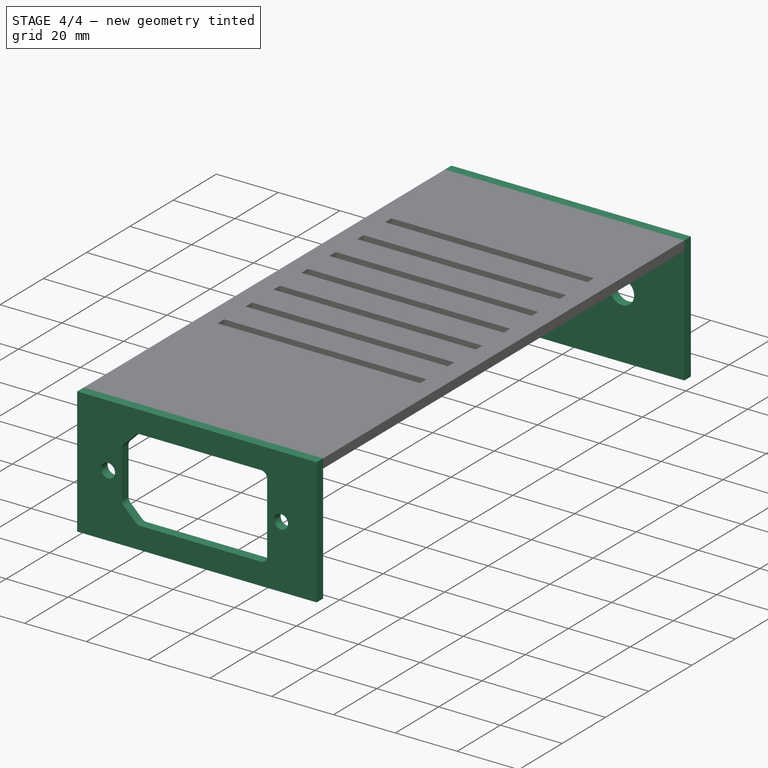
[diagram: stage 4 of 4 — iso view after this stage's code; geometry added in this stage tinted green]
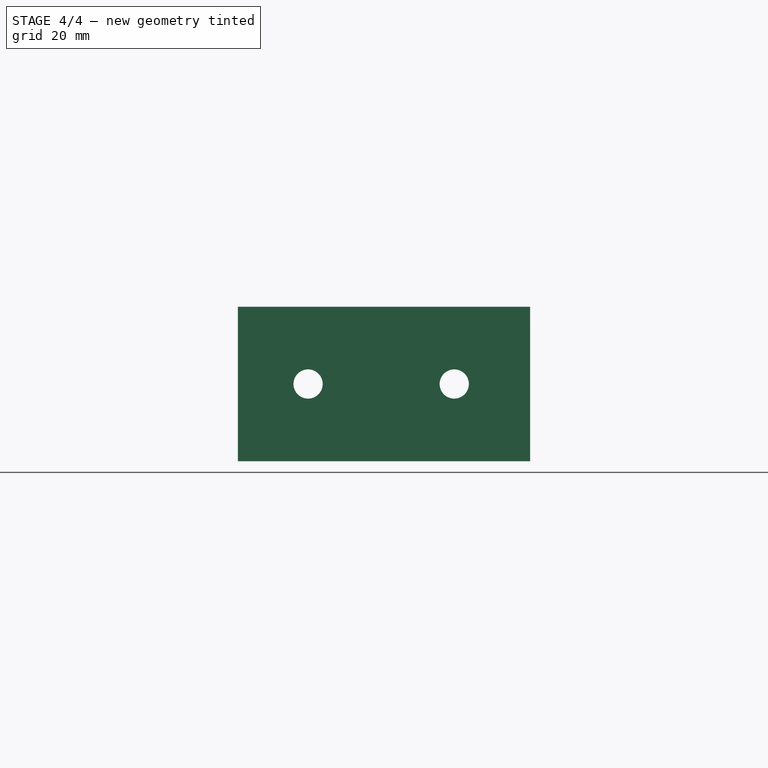
[diagram: stage 4 of 4 — front view after this stage's code; geometry added in this stage tinted green]
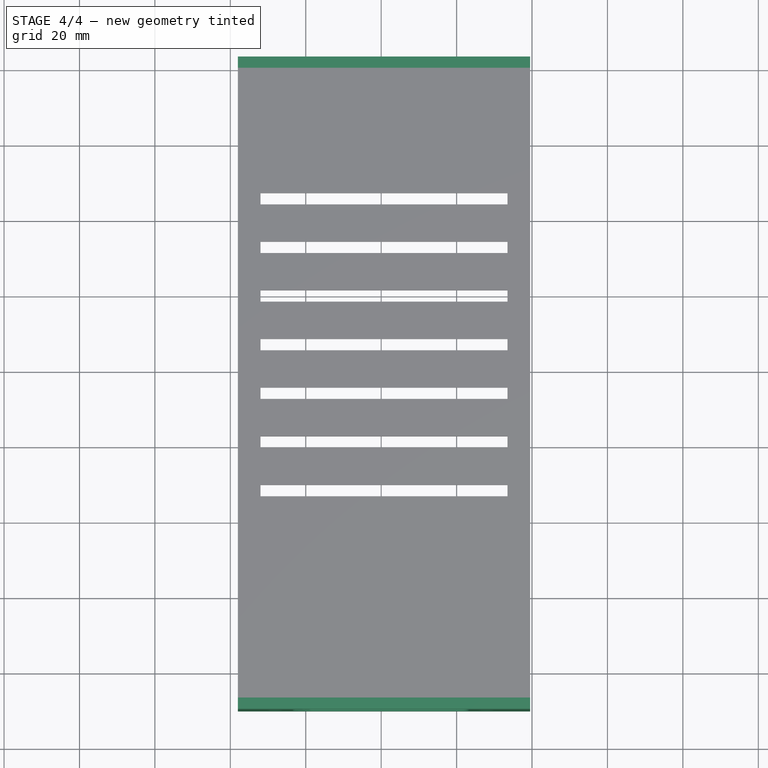
[diagram: stage 4 of 4 — top view after this stage's code; geometry added in this stage tinted green]
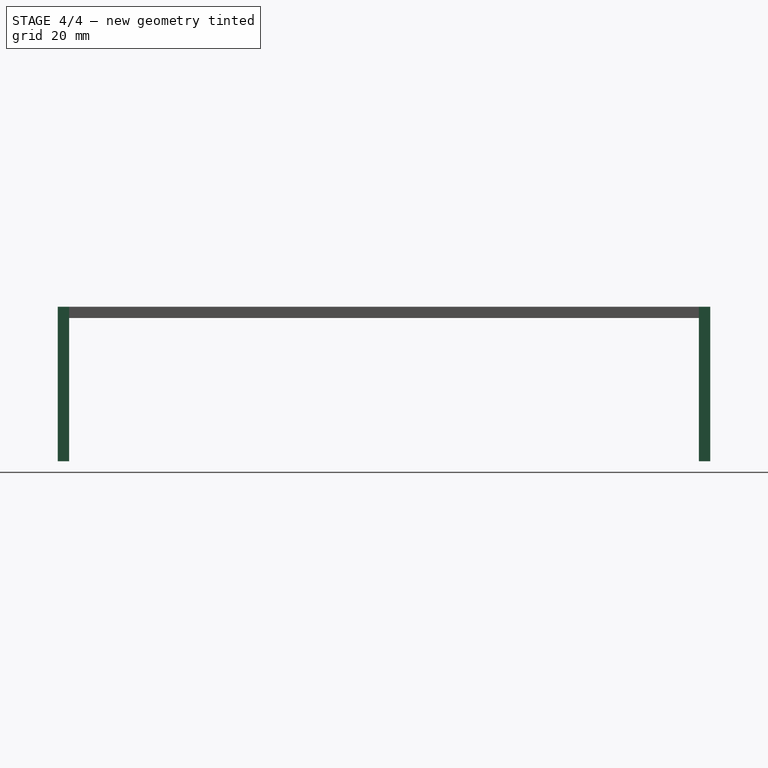
[diagram: stage 4 of 4 — right view after this stage's code; geometry added in this stage tinted green]
FEATURE [PartDesign::Body] Body002  label="left"
  Group = -> [Binder004,DatumPlane001,Sketch002,Pad002]
  Origin = -> Origin004
  Tip = -> Pad002
FEATURE [App::Part] Part002  label="dc_jack"
  Group = -> [__5mm_2_1mm_DC_JACK001,__5mm_2_1mm_DC_JACK]
  Origin = -> Origin009
  Placement = pos=(19.375,80,20.5) rot=(0,0,1;0rad)
FEATURE [PartDesign::FeatureBase] Clone
  BaseFeature = -> __5mm_2_1mm_DC_JACK001
  Placement = pos=(0,3,0) rot=(0,0,1;0rad)
FEATURE [PartDesign::Body] Body007  label="dc_jack_nut2"
  BaseFeature = -> __5mm_2_1mm_DC_JACK001
  Group = -> [Clone]
  Origin = -> Origin010
  Tip = -> Clone
FEATURE [PartDesign::FeatureBase] Clone001
  BaseFeature = -> __5mm_2_1mm_DC_JACK
FEATURE [PartDesign::Body] Body008  label="dc_jack_mount2"
  BaseFeature = -> __5mm_2_1mm_DC_JACK
  Group = -> [Clone001]
  Origin = -> Origin011
  Tip = -> Clone001
FEATURE [App::Part] Part003  label="dc_jack2"
  Group = -> [Body008,Body007]
  Origin = -> Origin012
  Placement = pos=(-19.38,80,20.5) rot=(0,0,1;0rad)
FEATURE [App::Part] Part001  label="reference_geometry"
  Group = -> [assembly_Compound,AC_Power_Socket_3_pin_250V_10A_AC_17002,Part002,Part003]
  Origin = -> Origin002
FEATURE [PartDesign::SubShapeBinder] Binder006  label="power_socket_binder"
  BindMode = 0
  ClaimChildren = false
  Context = -> Part [Body.Binder006.]
  Fuse = false
  MakeFace = true
  PartialLoad = false
  Relative = true
  Support = -> [Part001[AC_Power_Socket_3_pin_250V_10A_AC_17002.Edge12]]
  _Version = 2
FEATURE [PartDesign::SubShapeBinder] Binder007
  BindMode = 0
  ClaimChildren = false
  Context = -> Part [Body005.Binder007.]
  Fuse = false
  MakeFace = true
  PartialLoad = false
  Relative = true
  Support = -> [Body003[Pad003.Face3],Body[Pad.Face1],Part001[AC_Power_Socket_3_pin_250V_10A_AC_17002.],Body001[Pad001.Face4],Body002[Pad002.Face2]]
  _Version = 2
FEATURE [PartDesign::Plane] DatumPlane003
  Length = 95.0781
  MapMode = 6
  Placement = pos=(-41,-90,-3) rot=(0,0.707107,-0.707107;3.14159rad)
  ResizeMode = 0
  Support = -> [Binder007]
  Width = 80.5781
FEATURE [Sketcher::SketchObject] Sketch004
  ExternalGeometry = -> [Binder007]
  FullyConstrained = false
  MapMode = 5
  Placement = pos=(-41,-90,-3) rot=(0,0.707107,-0.707107;3.14159rad)
  Support = -> [DatumPlane003]
  sketch-geometry (18):
    g0: LineSegment StartX=-3 StartY=-44 StartZ=0 EndX=-80.5 EndY=-44 EndZ=0
    g1: LineSegment StartX=-80.5 StartY=-44 StartZ=0 EndX=-80.5 EndY=-3 EndZ=0
    g2: LineSegment StartX=-80.5 StartY=-3 StartZ=0 EndX=-3 EndY=-3 EndZ=0
    g3: LineSegment StartX=-3 StartY=-3 StartZ=0 EndX=-3 EndY=-44 EndZ=0
    g4: Circle CenterX=-13 CenterY=-23.5 CenterZ=0 NormalX=0 NormalY=0 NormalZ=1 AngleXU=0 Radius=2.25
    g5: Circle CenterX=-69 CenterY=-23.5 CenterZ=0 NormalX=0 NormalY=0 NormalZ=1 AngleXU=0 Radius=2.25
    g6: LineSegment StartX=-23.3284 StartY=-36.9 StartZ=0 EndX=-62.5 EndY=-36.9 EndZ=0
    g7: ArcOfCircle CenterX=-62.5 CenterY=-34.9 CenterZ=0 NormalX=0 NormalY=0 NormalZ=1 AngleXU=0 Radius=2 StartAngle=3.14159 EndAngle=4.71239
    g8: LineSegment StartX=-64.5 StartY=-34.9 StartZ=0 EndX=-64.5 EndY=-12.1 EndZ=0
    g9: ArcOfCircle CenterX=-62.5 CenterY=-12.1 CenterZ=0 NormalX=0 NormalY=0 NormalZ=1 AngleXU=0 Radius=2 StartAngle=1.5708 EndAngle=3.14159
    g10: LineSegment StartX=-62.5 StartY=-10.1 StartZ=0 EndX=-23.3284 EndY=-10.1 EndZ=0
    g11: ArcOfCircle CenterX=-23.3284 CenterY=-12.1 CenterZ=0 NormalX=0 NormalY=0 NormalZ=1 AngleXU=0 Radius=2 StartAngle=0.785398 EndAngle=1.5708
    g12: LineSegment StartX=-21.9142 StartY=-10.6858 StartZ=0 EndX=-18.0858 EndY=-14.5142 EndZ=0
    g13: ArcOfCircle CenterX=-19.5 CenterY=-15.9284 CenterZ=0 NormalX=0 NormalY=0 NormalZ=1 AngleXU=0 Radius=2 StartAngle=6e-16 EndAngle=0.785398
    g14: LineSegment StartX=-17.5 StartY=-15.9284 StartZ=0 EndX=-17.5 EndY=-31.0716 EndZ=0
    g15: ArcOfCircle CenterX=-19.5 CenterY=-31.0716 CenterZ=0 NormalX=0 NormalY=0 NormalZ=1 AngleXU=0 Radius=2 StartAngle=5.49779 EndAngle=6.28319
    g16: LineSegment StartX=-18.0858 StartY=-32.4858 StartZ=0 EndX=-21.9142 EndY=-36.3142 EndZ=0
    g17: ArcOfCircle CenterX=-23.3284 CenterY=-34.9 CenterZ=0 NormalX=0 NormalY=0 NormalZ=1 AngleXU=0 Radius=2 StartAngle=4.71239 EndAngle=5.49779
  constraints (23):
    c: Coincident(g0,g1)
    c: Coincident(g1,g2)
    c: Coincident(g2,g3)
    c: Coincident(g3,g0)
    c: Horizontal(g0)
    c: Horizontal(g2)
    c: Vertical(g1)
    c: Vertical(g3)
    c: Horizontal(g6)
    c: Tangent(g6,g7) = 1.5708
    c: Tangent(g7,g8) = 1.5708
    c: Tangent(g8,g9) = 1.5708
    c: Tangent(g9,g10) = 1.5708
    c: Tangent(g10,g11) = 1.5708
    c: Tangent(g11,g12) = 1.5708
    c: Tangent(g12,g13) = 1.5708
    c: Tangent(g13,g14) = 1.5708
    c: Tangent(g14,g15) = 1.5708
    c: Tangent(g15,g16) = 1.5708
    c: Tangent(g16,g17) = 1.5708
    c: Coincident(g17,g6)
    c: Tangent(g17,g6,g6) = 1.5708
    c: Horizontal(g10)
FEATURE [PartDesign::Pad] Pad004
  Direction = (1,1,1)
  Length = 3
  Length2 = 100
  Placement = pos=(-41,-90,-3) rot=(0,0.707107,-0.707107;3.14159rad)
  Profile = -> Sketch004
  Refine = true
  Reversed = true
  Type = 0
  expr: Length = <<measurements>>.thickness
FEATURE [PartDesign::Body] Body005  label="front"
  Group = -> [Binder007,DatumPlane003,Sketch004,Pad004]
  Origin = -> Origin007
  Tip = -> Pad004
FEATURE [PartDesign::SubShapeBinder] Binder008
  BindMode = 0
  ClaimChildren = false
  Context = -> Part [Body006.Binder008.]
  Fuse = false
  MakeFace = true
  PartialLoad = false
  Relative = true
  Support = -> [Body003[Pad003.Face1],Body[Pad.Face3],Part001[Part002.__5mm_2_1mm_DC_JACK.,Part003.Body008.],Body001[Pad001.Edge7,Pad001.Face2],Body002[Pad002.Face4]]
  _Version = 2
FEATURE [PartDesign::Plane] DatumPlane004
  Length = 91.8039
  MapMode = 13
  Placement = pos=(-13.1667,83,-2) rot=(0,0.707107,0.707107;3.14159rad)
  ResizeMode = 0
  Support = -> [Binder008]
  Width = 80.3039
FEATURE [Sketcher::SketchObject] Sketch005
  ExternalGeometry = -> [Binder008]
  FullyConstrained = false
  MapMode = 5
  Placement = pos=(-13.1667,83,-2) rot=(0,0.707107,0.707107;3.14159rad)
  Support = -> [DatumPlane004]
  sketch-geometry (8):
    g0: LineSegment StartX=24.8333 StartY=43 StartZ=0 EndX=-52.6667 EndY=43 EndZ=0
    g1: LineSegment StartX=-52.6667 StartY=43 StartZ=0 EndX=-52.6667 EndY=2 EndZ=0
    g2: LineSegment StartX=-52.6667 StartY=2 StartZ=0 EndX=24.8333 EndY=2 EndZ=0
    g3: LineSegment StartX=24.8333 StartY=2 StartZ=0 EndX=24.8333 EndY=43 EndZ=0
    g4: GeomPoint X=-32.5417 Y=22.5 Z=0
    g5: GeomPoint X=6.21333 Y=22.5 Z=0
    g6: Circle CenterX=6.21333 CenterY=22.5 CenterZ=0 NormalX=0 NormalY=0 NormalZ=1 AngleXU=0 Radius=3.8735
    g7: Circle CenterX=-32.5417 CenterY=22.5 CenterZ=0 NormalX=0 NormalY=0 NormalZ=1 AngleXU=0 Radius=3.8735
  constraints (10):
    c: Coincident(g0,g1)
    c: Coincident(g1,g2)
    c: Coincident(g2,g3)
    c: Horizontal(g2)
    c: Vertical(g1)
    c: Vertical(g3)
    c: Coincident(g6,g5)
    c: Coincident(g7,g4)
    c: Coincident(g3,g0)
    c: Horizontal(g0)
FEATURE [PartDesign::Pad] Pad005
  Direction = (1,1,1)
  Length = 3
  Length2 = 100
  Placement = pos=(-13.1667,83,-2) rot=(0,0.707107,0.707107;3.14159rad)
  Profile = -> Sketch005
  Refine = true
  Reversed = true
  Type = 0
  expr: Length = <<measurements>>.thickness
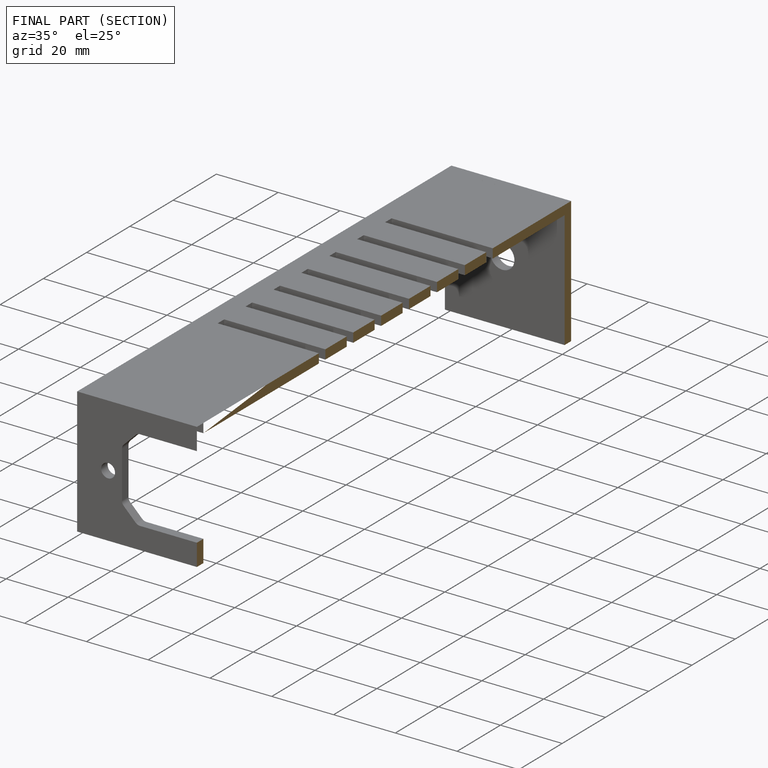
[diagram: finished part — half-section view (interior)]
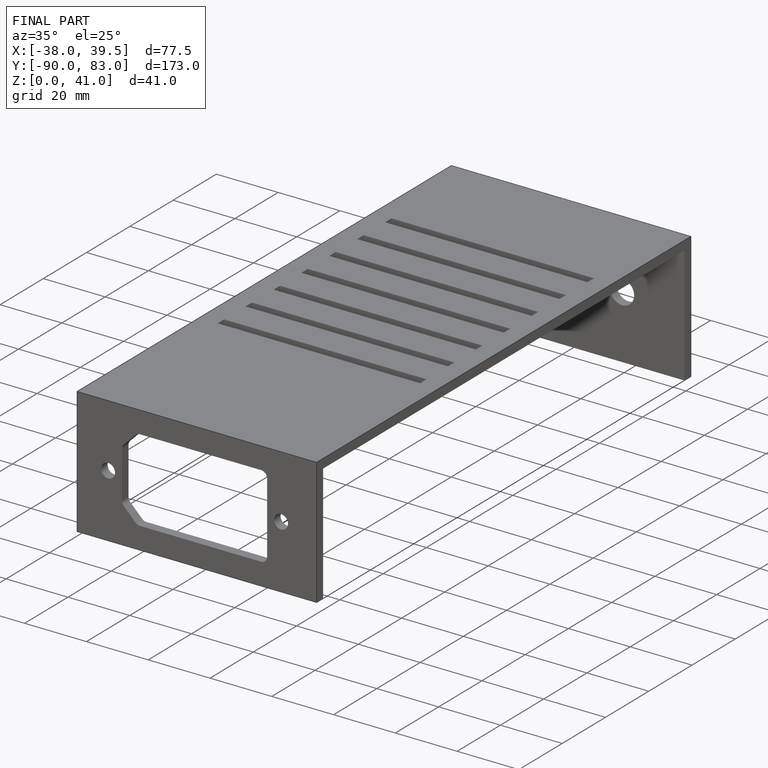
[diagram: finished part — iso view with bounding-box wireframe]
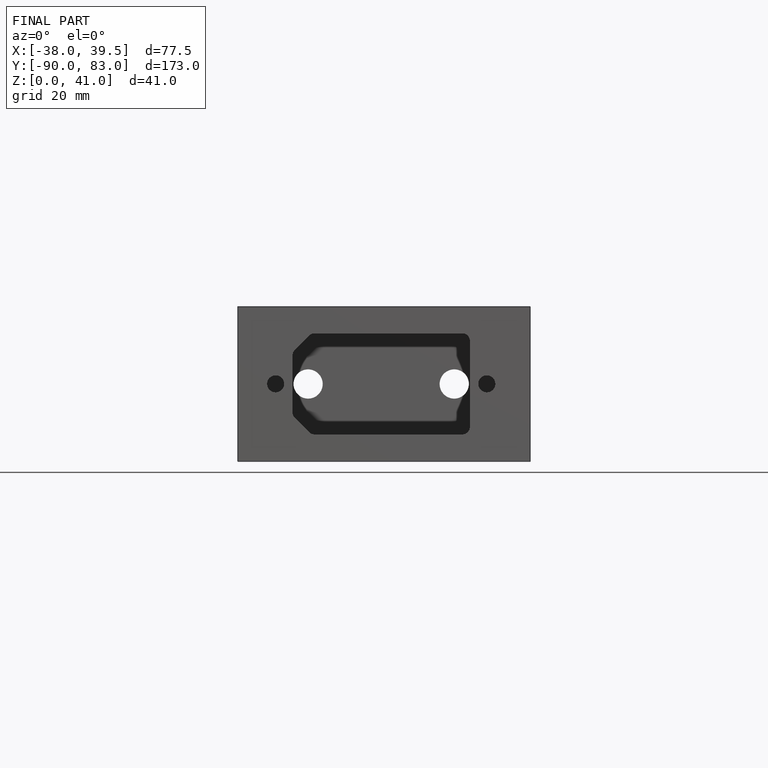
[diagram: finished part — front view with bounding-box wireframe]
